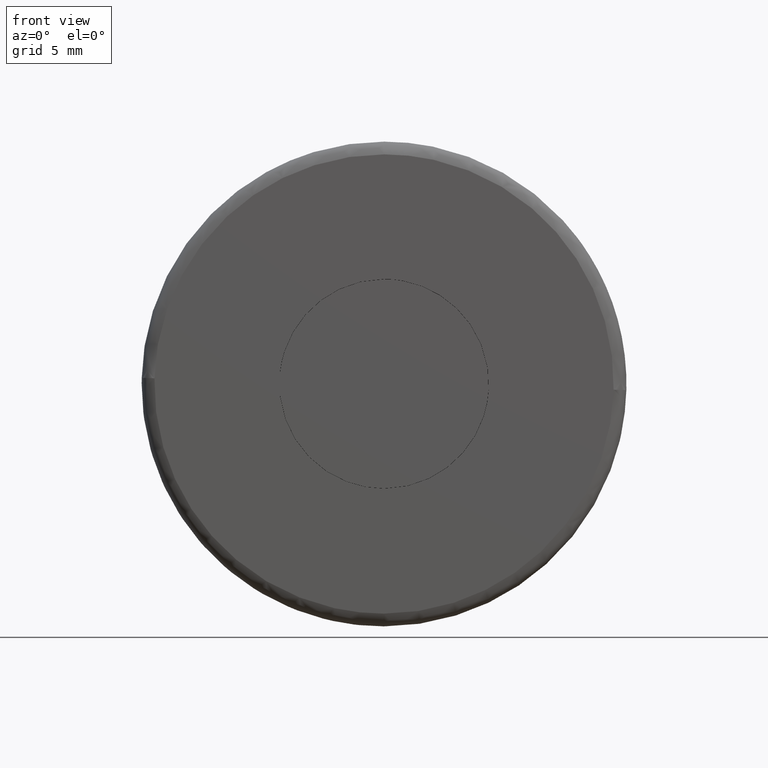
[diagram: clean part render]
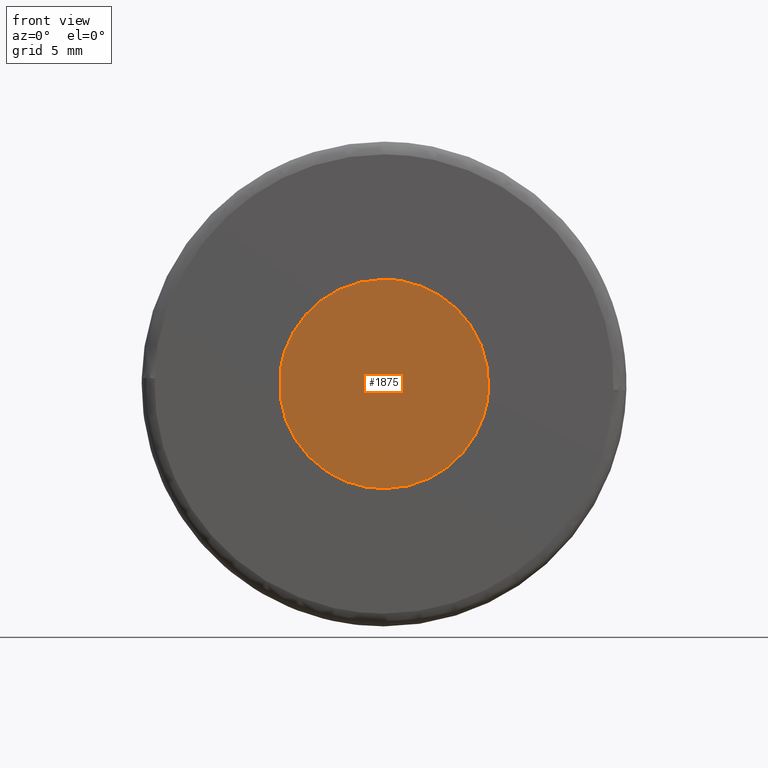
[diagram: same view with one face highlighted and labeled with its STEP entity id]
A machine part, front view. The second image highlights one B-rep face of the part: STEP entity #1875.
In plain terms, the highlighted face is a freeform B-spline surface patch.
Its self-contained STEP definition (entity closure, byte-faithful):
#992=CARTESIAN_POINT('',(-4.071339366399505,-1.222374E-014,0.483937768312048));
#993=VERTEX_POINT('',#992);
#994=CARTESIAN_POINT('',(0.0,0.0,-4.100000000000001));
#995=VERTEX_POINT('',#994);
#996=CARTESIAN_POINT('',(-4.071339366399505,-1.222374E-014,0.483937768312048));
#997=CARTESIAN_POINT('',(-4.100000000000001,0.0,0.242817579972066));
#998=CARTESIAN_POINT('',(-4.100000000000001,0.0,0.0));
#999=CARTESIAN_POINT('',(-4.100000000000001,0.0,-4.100000000000001));
#1000=CARTESIAN_POINT('',(0.0,0.0,-4.100000000000001));
#1008=(BOUNDED_CURVE()B_SPLINE_CURVE(2,(#996,#997,#998,#999,#1000),.UNSPECIFIED.,.F.,.U.)B_SPLINE_CURVE_WITH_KNOTS((3,2,3),(0.229562581184736,0.250000000000000,0.500000000000000),.UNSPECIFIED.)CURVE()GEOMETRIC_REPRESENTATION_ITEM()RATIONAL_B_SPLINE_CURVE((0.956026965223820,0.976056074475834,1.0,0.707106781186547,1.0))REPRESENTATION_ITEM(''));
#1009=EDGE_CURVE('',#993,#995,#1008,.T.);
#1050=CARTESIAN_POINT('',(4.092353064644878,-3.803902E-014,-0.250292617251542));
#1051=VERTEX_POINT('',#1050);
#1057=CARTESIAN_POINT('',(0.0,0.0,-4.100000000000001));
#1058=CARTESIAN_POINT('',(3.856900912487086,0.0,-4.100000000000000));
#1059=CARTESIAN_POINT('',(4.092353064644878,-3.803902E-014,-0.250292617251542));
#1067=(BOUNDED_CURVE()B_SPLINE_CURVE(2,(#1057,#1058,#1059),.UNSPECIFIED.,.F.,.U.)B_SPLINE_CURVE_WITH_KNOTS((3,3),(0.500000000000000,0.739333231869163),.UNSPECIFIED.)CURVE()GEOMETRIC_REPRESENTATION_ITEM()RATIONAL_B_SPLINE_CURVE((1.0,0.719603677395258,0.976072619536287))REPRESENTATION_ITEM(''));
#1068=EDGE_CURVE('',#995,#1051,#1067,.T.);
#1091=CARTESIAN_POINT('',(0.0,0.0,4.100000000000001));
#1092=VERTEX_POINT('',#1091);
#1093=CARTESIAN_POINT('',(0.0,0.0,4.100000000000001));
#1094=CARTESIAN_POINT('',(-3.641517892680231,0.0,4.100000000000001));
#1095=CARTESIAN_POINT('',(-4.071339366399505,-1.222374E-014,0.483937768312048));
#1103=(BOUNDED_CURVE()B_SPLINE_CURVE(2,(#1093,#1094,#1095),.UNSPECIFIED.,.F.,.U.)B_SPLINE_CURVE_WITH_KNOTS((3,3),(0.0,0.229562581184736),.UNSPECIFIED.)CURVE()GEOMETRIC_REPRESENTATION_ITEM()RATIONAL_B_SPLINE_CURVE((1.0,0.731050706710713,0.956026965223820))REPRESENTATION_ITEM(''));
#1104=EDGE_CURVE('',#1092,#993,#1103,.T.);
#1106=CARTESIAN_POINT('',(4.092353064644878,-3.803902E-014,-0.250292617251542));
#1107=CARTESIAN_POINT('',(4.100000000000001,0.0,-0.125263123138655));
#1108=CARTESIAN_POINT('',(4.100000000000001,0.0,0.0));
#1109=CARTESIAN_POINT('',(4.100000000000001,0.0,4.100000000000001));
#1110=CARTESIAN_POINT('',(0.0,0.0,4.100000000000001));
#1118=(BOUNDED_CURVE()B_SPLINE_CURVE(2,(#1106,#1107,#1108,#1109,#1110),.UNSPECIFIED.,.F.,.U.)B_SPLINE_CURVE_WITH_KNOTS((3,2,3),(0.739333231869163,0.750000000000000,1.0),.UNSPECIFIED.)CURVE()GEOMETRIC_REPRESENTATION_ITEM()RATIONAL_B_SPLINE_CURVE((0.976072619536287,0.987503103791290,1.0,0.707106781186547,1.0))REPRESENTATION_ITEM(''));
#1119=EDGE_CURVE('',#1051,#1092,#1118,.T.);
#1864=CARTESIAN_POINT('',(-4.509515721571314,-8.266093E-016,4.509589907131077));
#1865=CARTESIAN_POINT('',(-4.509515721571314,-8.266093E-016,-4.509590200385929));
#1866=CARTESIAN_POINT('',(4.509490208399162,-8.266093E-016,4.509589907131077));
#1867=CARTESIAN_POINT('',(4.509490208399162,-8.266093E-016,-4.509590200385929));
#1868=B_SPLINE_SURFACE_WITH_KNOTS('',1,1,((#1864,#1866),(#1865,#1867)),.UNSPECIFIED.,.F.,.F.,.U.,(2,2),(2,2),(0.0,9.019180107517006),(0.0,9.019005929970476),.UNSPECIFIED.);
#1869=ORIENTED_EDGE('',*,*,#1104,.T.);
#1870=ORIENTED_EDGE('',*,*,#1009,.T.);
#1871=ORIENTED_EDGE('',*,*,#1068,.T.);
#1872=ORIENTED_EDGE('',*,*,#1119,.T.);
#1873=EDGE_LOOP('',(#1869,#1870,#1871,#1872));
#1874=FACE_OUTER_BOUND('',#1873,.T.);
#1875=ADVANCED_FACE('',(#1874),#1868,.T.);